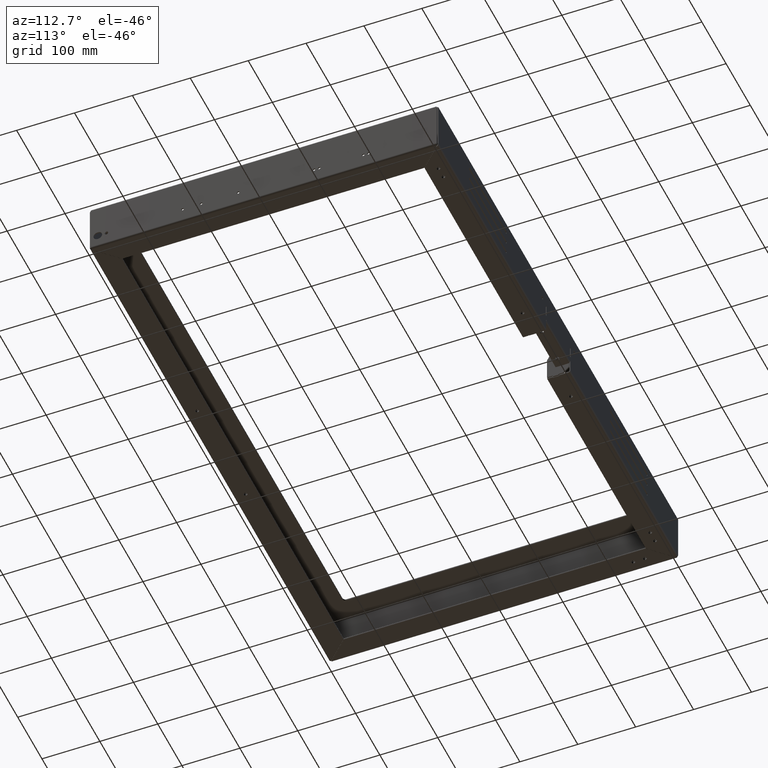
[diagram: clean part render]
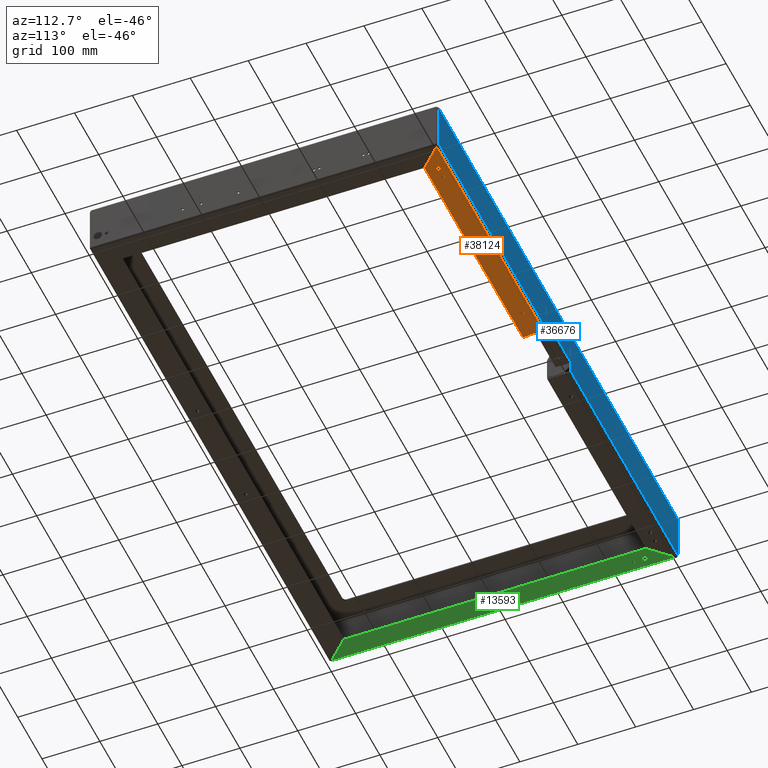
[diagram: same view with three faces highlighted in distinct colors, each labeled with its STEP entity id]
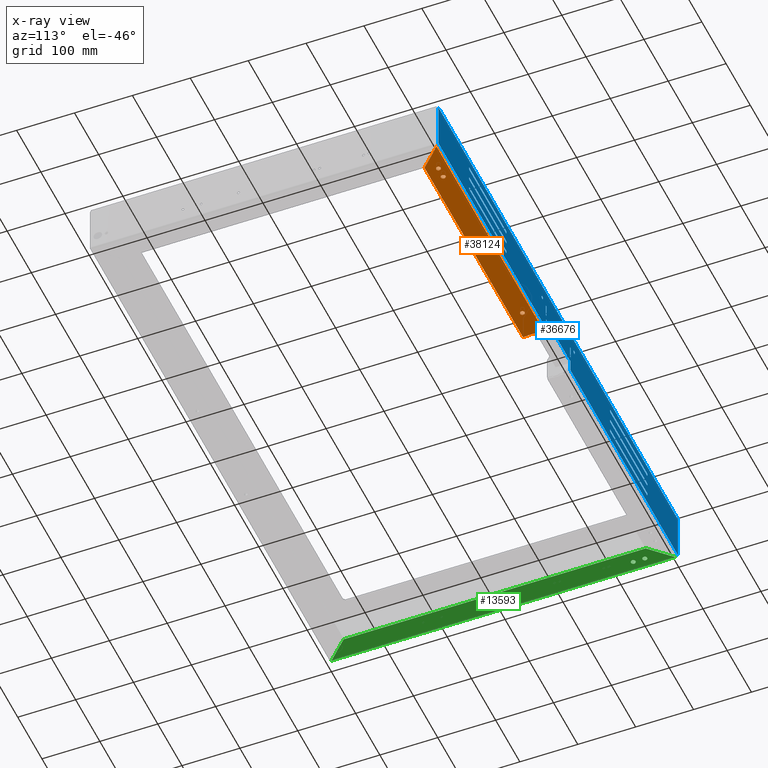
[diagram: x-ray of the same camera — body ghosted, the three highlighted faces saturated]
A machine part, auxiliary view with three faces highlighted in distinct colors.
The next image is the same camera in x-ray (body ghosted, the three faces saturated) — at least one of them is partly hidden behind the body in this view.
Their STEP definitions:

[orange] entity #38124 — the highlighted planar face has unit normal (0, -0, 1).
#48 = DIRECTION ( 'NONE',  ( 0.0000000000000000000, -1.000000000000000000, -7.304098846218139200E-015 ) ) ;
#461 = EDGE_LOOP ( 'NONE', ( #18545, #9162 ) ) ;
#619 = EDGE_CURVE ( 'NONE', #40884, #42184, #40321, .T. ) ;
#708 = VERTEX_POINT ( 'NONE', #22861 ) ;
#733 = DIRECTION ( 'NONE',  ( -0.0000000000000000000, 7.304098846218139200E-015, -1.000000000000000000 ) ) ;
#845 = ORIENTED_EDGE ( 'NONE', *, *, #24158, .F. ) ;
#1019 = AXIS2_PLACEMENT_3D ( 'NONE', #26883, #2458, #23357 ) ;
#1058 = VECTOR ( 'NONE', #24397, 1000.000000000000100 ) ;
#1075 = EDGE_CURVE ( 'NONE', #42184, #40884, #7466, .T. ) ;
#1082 = EDGE_CURVE ( 'NONE', #41067, #708, #18952, .T. ) ;
#1145 = ORIENTED_EDGE ( 'NONE', *, *, #44659, .T. ) ;
#2103 = VERTEX_POINT ( 'NONE', #31911 ) ;
#2458 = DIRECTION ( 'NONE',  ( -0.0000000000000000000, 7.304098846218139200E-015, -1.000000000000000000 ) ) ;
#2982 = AXIS2_PLACEMENT_3D ( 'NONE', #28549, #733, #21634 ) ;
#3958 = CARTESIAN_POINT ( 'NONE',  ( -494.9292893218816400, 261.0000000000003400, -90.00000000000028400 ) ) ;
#3966 = CARTESIAN_POINT ( 'NONE',  ( -494.9292893218816400, 297.0000000000003400, -90.00000000000002800 ) ) ;
#4014 = CARTESIAN_POINT ( 'NONE',  ( 99.99999999999994300, 281.0000000000003400, -90.00000000000289900 ) ) ;
#5387 = DIRECTION ( 'NONE',  ( -1.116924572057501200E-016, 1.000000000000000000, 3.784851220313033900E-015 ) ) ;
#5707 = CARTESIAN_POINT ( 'NONE',  ( 447.0000000000005700, 281.0000000000002800, -90.00000000000014200 ) ) ;
#6368 = EDGE_CURVE ( 'NONE', #25940, #27370, #20803, .T. ) ;
#7031 = ORIENTED_EDGE ( 'NONE', *, *, #6368, .F. ) ;
#7063 = ORIENTED_EDGE ( 'NONE', *, *, #8671, .F. ) ;
#7466 = CIRCLE ( 'NONE', #39530, 4.000000000000003600 ) ;
#7467 = DIRECTION ( 'NONE',  ( -0.0000000000000000000, 7.304098846218139200E-015, -1.000000000000000000 ) ) ;
#7552 = VERTEX_POINT ( 'NONE', #42943 ) ;
#8671 = EDGE_CURVE ( 'NONE', #7552, #2103, #31553, .T. ) ;
#8934 = CARTESIAN_POINT ( 'NONE',  ( 49.99999999999997200, 261.0000000000004000, -90.00000000000061100 ) ) ;
#9162 = ORIENTED_EDGE ( 'NONE', *, *, #619, .F. ) ;
#10075 = VECTOR ( 'NONE', #33703, 1000.000000000000000 ) ;
#10175 = AXIS2_PLACEMENT_3D ( 'NONE', #4014, #7467, #10994 ) ;
#10332 = LINE ( 'NONE', #13883, #1058 ) ;
#10601 = CARTESIAN_POINT ( 'NONE',  ( 427.0000000000005700, 285.0000000000002800, -90.00000000000011400 ) ) ;
#10884 = CARTESIAN_POINT ( 'NONE',  ( 447.0000000000005700, 281.0000000000002800, -90.00000000000014200 ) ) ;
#10994 = DIRECTION ( 'NONE',  ( 0.0000000000000000000, 1.000000000000000000, 6.938893903907222100E-015 ) ) ;
#13694 = DIRECTION ( 'NONE',  ( 6.308085367188384300E-016, 1.000000000000000000, 0.0000000000000000000 ) ) ;
#13883 = CARTESIAN_POINT ( 'NONE',  ( -204.6440534477185300, -400.5733427695943200, -90.00000000000513000 ) ) ;
#14694 = ORIENTED_EDGE ( 'NONE', *, *, #20828, .T. ) ;
#14935 = EDGE_CURVE ( 'NONE', #2103, #7552, #33798, .T. ) ;
#14944 = VERTEX_POINT ( 'NONE', #33767 ) ;
#15201 = CARTESIAN_POINT ( 'NONE',  ( 456.9292893218813600, 261.0000000000004500, -90.00000000000028400 ) ) ;
#15353 = CARTESIAN_POINT ( 'NONE',  ( 427.0000000000005700, 277.0000000000002800, -90.00000000000015600 ) ) ;
#15539 = VERTEX_POINT ( 'NONE', #33219 ) ;
#15560 = CARTESIAN_POINT ( 'NONE',  ( 492.9292893218816400, 297.0000000000005100, -90.00000000000002800 ) ) ;
#15667 = VECTOR ( 'NONE', #5387, 1000.000000000000000 ) ;
#16628 = EDGE_CURVE ( 'NONE', #31745, #708, #21678, .T. ) ;
#17140 = FACE_OUTER_BOUND ( 'NONE', #17780, .T. ) ;
#17622 = LINE ( 'NONE', #18057, #36211 ) ;
#17754 = DIRECTION ( 'NONE',  ( -1.000000000000000000, 1.116924572057501200E-016, 3.100088441669593800E-031 ) ) ;
#17755 = AXIS2_PLACEMENT_3D ( 'NONE', #20647, #20954, #48 ) ;
#17780 = EDGE_LOOP ( 'NONE', ( #30791, #1145, #18970, #41956, #30533, #41846, #20652, #14694 ) ) ;
#18005 = AXIS2_PLACEMENT_3D ( 'NONE', #5707, #26646, #23142 ) ;
#18047 = CARTESIAN_POINT ( 'NONE',  ( 447.0000000000005700, 285.0000000000002800, -90.00000000000011400 ) ) ;
#18057 = CARTESIAN_POINT ( 'NONE',  ( 51.00000000000003600, 281.5000000000004000, -90.00000000000019900 ) ) ;
#18545 = ORIENTED_EDGE ( 'NONE', *, *, #1075, .F. ) ;
#18848 = EDGE_CURVE ( 'NONE', #22390, #37421, #31366, .T. ) ;
#18952 = LINE ( 'NONE', #34953, #15667 ) ;
#18970 = ORIENTED_EDGE ( 'NONE', *, *, #19492, .T. ) ;
#19276 = DIRECTION ( 'NONE',  ( -0.0000000000000000000, 7.304098846218139200E-015, -1.000000000000000000 ) ) ;
#19346 = FACE_BOUND ( 'NONE', #461, .T. ) ;
#19492 = EDGE_CURVE ( 'NONE', #14944, #41067, #17622, .T. ) ;
#19691 = AXIS2_PLACEMENT_3D ( 'NONE', #10884, #31855, #28321 ) ;
#19780 = CARTESIAN_POINT ( 'NONE',  ( 51.00000000000002800, 270.5000000000004000, -90.00000000000019900 ) ) ;
#20647 = CARTESIAN_POINT ( 'NONE',  ( -7.451354628297620700E-029, 6.643518588373346800E-013, -90.00000000000218800 ) ) ;
#20652 = ORIENTED_EDGE ( 'NONE', *, *, #18848, .F. ) ;
#20803 = CIRCLE ( 'NONE', #18005, 4.000000000000003600 ) ;
#20828 = EDGE_CURVE ( 'NONE', #22390, #40538, #38118, .T. ) ;
#20954 = DIRECTION ( 'NONE',  ( 8.192259872435579800E-031, -7.304098846218139200E-015, 1.000000000000000000 ) ) ;
#21521 = CIRCLE ( 'NONE', #19691, 4.000000000000003600 ) ;
#21634 = DIRECTION ( 'NONE',  ( 0.0000000000000000000, 1.000000000000000000, 6.938893903907222100E-015 ) ) ;
#21678 = LINE ( 'NONE', #3966, #26593 ) ;
#22390 = VERTEX_POINT ( 'NONE', #8934 ) ;
#22440 = LINE ( 'NONE', #38116, #24622 ) ;
#22861 = CARTESIAN_POINT ( 'NONE',  ( 49.99999999999997200, 297.0000000000005100, -90.00000000000008500 ) ) ;
#23057 = CARTESIAN_POINT ( 'NONE',  ( 50.00000000000002800, 270.5000000000004000, -90.00000000000019900 ) ) ;
#23142 = DIRECTION ( 'NONE',  ( 0.0000000000000000000, 1.000000000000000000, 6.938893903907222100E-015 ) ) ;
#23357 = DIRECTION ( 'NONE',  ( 0.0000000000000000000, 1.000000000000000000, 6.938893903907222100E-015 ) ) ;
#23590 = CARTESIAN_POINT ( 'NONE',  ( 50.00000000000003600, 281.5000000000004000, -90.00000000000019900 ) ) ;
#23729 = EDGE_CURVE ( 'NONE', #15539, #40538, #44007, .T. ) ;
#24158 = EDGE_CURVE ( 'NONE', #27370, #25940, #21521, .T. ) ;
#24397 = DIRECTION ( 'NONE',  ( 0.7071067811865502400, 0.7071067811865449100, 5.176821466019573600E-015 ) ) ;
#24433 = VECTOR ( 'NONE', #34153, 1000.000000000000000 ) ;
#24622 = VECTOR ( 'NONE', #13694, 1000.000000000000000 ) ;
#25940 = VERTEX_POINT ( 'NONE', #18047 ) ;
#26450 = FACE_BOUND ( 'NONE', #34404, .T. ) ;
#26593 = VECTOR ( 'NONE', #31904, 1000.000000000000000 ) ;
#26646 = DIRECTION ( 'NONE',  ( -0.0000000000000000000, 7.304098846218139200E-015, -1.000000000000000000 ) ) ;
#26883 = CARTESIAN_POINT ( 'NONE',  ( 99.99999999999994300, 281.0000000000003400, -90.00000000000289900 ) ) ;
#27370 = VERTEX_POINT ( 'NONE', #40033 ) ;
#28321 = DIRECTION ( 'NONE',  ( 0.0000000000000000000, 1.000000000000000000, 6.938893903907222100E-015 ) ) ;
#28368 = DIRECTION ( 'NONE',  ( 1.000000000000000000, 1.121597618668223000E-016, -0.0000000000000000000 ) ) ;
#28549 = CARTESIAN_POINT ( 'NONE',  ( 427.0000000000005700, 281.0000000000002800, -90.00000000000014200 ) ) ;
#30533 = ORIENTED_EDGE ( 'NONE', *, *, #16628, .F. ) ;
#30662 = CARTESIAN_POINT ( 'NONE',  ( 49.99999999999997900, 159.0196097281446400, -90.00000000000061100 ) ) ;
#30791 = ORIENTED_EDGE ( 'NONE', *, *, #23729, .F. ) ;
#31366 = LINE ( 'NONE', #3958, #39521 ) ;
#31553 = CIRCLE ( 'NONE', #10175, 4.000000000000003600 ) ;
#31745 = VERTEX_POINT ( 'NONE', #15560 ) ;
#31855 = DIRECTION ( 'NONE',  ( -0.0000000000000000000, 7.304098846218139200E-015, -1.000000000000000000 ) ) ;
#31904 = DIRECTION ( 'NONE',  ( -1.000000000000000000, -1.682396428002334500E-016, -4.096129936217790800E-031 ) ) ;
#31911 = CARTESIAN_POINT ( 'NONE',  ( 99.99999999999994300, 285.0000000000003400, -90.00000000000287100 ) ) ;
#33219 = CARTESIAN_POINT ( 'NONE',  ( 51.00000000000002800, 270.5000000000004000, -90.00000000000019900 ) ) ;
#33703 = DIRECTION ( 'NONE',  ( -1.000000000000000000, 1.116924572057501200E-016, 3.100088441669593800E-031 ) ) ;
#33767 = CARTESIAN_POINT ( 'NONE',  ( 51.00000000000003600, 281.5000000000004000, -90.00000000000019900 ) ) ;
#33798 = CIRCLE ( 'NONE', #1019, 4.000000000000003600 ) ;
#34153 = DIRECTION ( 'NONE',  ( -1.116924572057501200E-016, 1.000000000000000000, 3.784851220313033900E-015 ) ) ;
#34404 = EDGE_LOOP ( 'NONE', ( #45237, #7063 ) ) ;
#34857 = PLANE ( 'NONE',  #17755 ) ;
#34953 = CARTESIAN_POINT ( 'NONE',  ( 49.99999999999997900, 159.0196097281446400, -90.00000000000061100 ) ) ;
#36211 = VECTOR ( 'NONE', #17754, 1000.000000000000000 ) ;
#36837 = FACE_BOUND ( 'NONE', #38559, .T. ) ;
#37421 = VERTEX_POINT ( 'NONE', #15201 ) ;
#38116 = CARTESIAN_POINT ( 'NONE',  ( 51.00000000000002800, 270.5000000000004000, -90.00000000000019900 ) ) ;
#38118 = LINE ( 'NONE', #30662, #24433 ) ;
#38124 = ADVANCED_FACE ( 'NONE', ( #19346, #36837, #26450, #17140 ), #34857, .F. ) ;
#38559 = EDGE_LOOP ( 'NONE', ( #7031, #845 ) ) ;
#39521 = VECTOR ( 'NONE', #28368, 1000.000000000000000 ) ;
#39530 = AXIS2_PLACEMENT_3D ( 'NONE', #43782, #19276, #40216 ) ;
#40033 = CARTESIAN_POINT ( 'NONE',  ( 447.0000000000005700, 277.0000000000002800, -90.00000000000015600 ) ) ;
#40216 = DIRECTION ( 'NONE',  ( 0.0000000000000000000, 1.000000000000000000, 6.938893903907222100E-015 ) ) ;
#40321 = CIRCLE ( 'NONE', #2982, 4.000000000000003600 ) ;
#40538 = VERTEX_POINT ( 'NONE', #23057 ) ;
#40884 = VERTEX_POINT ( 'NONE', #15353 ) ;
#41067 = VERTEX_POINT ( 'NONE', #23590 ) ;
#41651 = EDGE_CURVE ( 'NONE', #37421, #31745, #10332, .T. ) ;
#41846 = ORIENTED_EDGE ( 'NONE', *, *, #41651, .F. ) ;
#41956 = ORIENTED_EDGE ( 'NONE', *, *, #1082, .T. ) ;
#42184 = VERTEX_POINT ( 'NONE', #10601 ) ;
#42943 = CARTESIAN_POINT ( 'NONE',  ( 99.99999999999994300, 277.0000000000003400, -90.00000000000292700 ) ) ;
#43782 = CARTESIAN_POINT ( 'NONE',  ( 427.0000000000005700, 281.0000000000002800, -90.00000000000014200 ) ) ;
#44007 = LINE ( 'NONE', #19780, #10075 ) ;
#44659 = EDGE_CURVE ( 'NONE', #15539, #14944, #22440, .T. ) ;
#45237 = ORIENTED_EDGE ( 'NONE', *, *, #14935, .F. ) ;

[blue] entity #36676 — the highlighted planar face has unit normal (0, -1, -0).
#23 = EDGE_CURVE ( 'NONE', #8986, #38171, #41473, .T. ) ;
#83 = DIRECTION ( 'NONE',  ( 0.0000000000000000000, 0.0000000000000000000, -1.000000000000000000 ) ) ;
#149 = LINE ( 'NONE', #15986, #26916 ) ;
#526 = DIRECTION ( 'NONE',  ( -1.116924572057501200E-016, -1.000000000000000000, 3.784851220313033900E-015 ) ) ;
#877 = ORIENTED_EDGE ( 'NONE', *, *, #25080, .F. ) ;
#903 = FACE_BOUND ( 'NONE', #28738, .T. ) ;
#972 = DIRECTION ( 'NONE',  ( 0.0000000000000000000, 0.0000000000000000000, 1.000000000000000000 ) ) ;
#1083 = LINE ( 'NONE', #20419, #36053 ) ;
#1144 = VECTOR ( 'NONE', #20299, 1000.000000000000000 ) ;
#1267 = AXIS2_PLACEMENT_3D ( 'NONE', #13108, #37532, #16598 ) ;
#1333 = LINE ( 'NONE', #29087, #18788 ) ;
#1404 = DIRECTION ( 'NONE',  ( 0.0000000000000000000, 0.0000000000000000000, -1.000000000000000000 ) ) ;
#1472 = CARTESIAN_POINT ( 'NONE',  ( -50.00000000000003600, 301.0000000000003400, -70.00000000000004300 ) ) ;
#1779 = LINE ( 'NONE', #21516, #9933 ) ;
#1877 = VECTOR ( 'NONE', #41200, 1000.000000000000000 ) ;
#1879 = DIRECTION ( 'NONE',  ( 0.0000000000000000000, 0.0000000000000000000, -1.000000000000000000 ) ) ;
#1948 = AXIS2_PLACEMENT_3D ( 'NONE', #4743, #41567, #45106 ) ;
#1970 = ORIENTED_EDGE ( 'NONE', *, *, #17787, .F. ) ;
#2117 = VERTEX_POINT ( 'NONE', #30449 ) ;
#2174 = EDGE_LOOP ( 'NONE', ( #4948, #13505, #9654, #33256 ) ) ;
#2244 = CARTESIAN_POINT ( 'NONE',  ( -48.75000000000003600, 301.0000000000001700, -34.49999999999999300 ) ) ;
#2390 = CARTESIAN_POINT ( 'NONE',  ( 215.9133126665040300, 301.0000000000005100, -47.50000000000231600 ) ) ;
#2711 = ORIENTED_EDGE ( 'NONE', *, *, #38496, .F. ) ;
#2733 = VERTEX_POINT ( 'NONE', #37917 ) ;
#2769 = CARTESIAN_POINT ( 'NONE',  ( -497.0000000000002300, 301.0000000000000000, -3.999999999999995600 ) ) ;
#2856 = CARTESIAN_POINT ( 'NONE',  ( 49.99999999999997200, 301.0000000000003400, -70.00000000000005700 ) ) ;
#2862 = VERTEX_POINT ( 'NONE', #42235 ) ;
#2979 = EDGE_CURVE ( 'NONE', #6832, #39454, #1333, .T. ) ;
#3049 = DIRECTION ( 'NONE',  ( 4.227393329549447000E-031, -3.784851220313033900E-015, 1.000000000000000000 ) ) ;
#3237 = EDGE_CURVE ( 'NONE', #21117, #23412, #19308, .T. ) ;
#3279 = AXIS2_PLACEMENT_3D ( 'NONE', #22651, #22302, #1404 ) ;
#3303 = ORIENTED_EDGE ( 'NONE', *, *, #44551, .T. ) ;
#3640 = ORIENTED_EDGE ( 'NONE', *, *, #20587, .F. ) ;
#3748 = ORIENTED_EDGE ( 'NONE', *, *, #6403, .T. ) ;
#3860 = EDGE_CURVE ( 'NONE', #36659, #11584, #32413, .T. ) ;
#3996 = VERTEX_POINT ( 'NONE', #41259 ) ;
#4052 = LINE ( 'NONE', #33483, #13312 ) ;
#4053 = EDGE_CURVE ( 'NONE', #19134, #33717, #149, .T. ) ;
#4105 = DIRECTION ( 'NONE',  ( 4.227393329549447000E-031, -3.784851220313033900E-015, 1.000000000000000000 ) ) ;
#4162 = VERTEX_POINT ( 'NONE', #2390 ) ;
#4178 = ORIENTED_EDGE ( 'NONE', *, *, #11492, .F. ) ;
#4498 = CARTESIAN_POINT ( 'NONE',  ( 65.99999999999997200, 301.0000000000001700, -29.99999999999997900 ) ) ;
#4743 = CARTESIAN_POINT ( 'NONE',  ( -3.361942961893078900E-014, 301.0000000000000600, 1.146223179991909500E-012 ) ) ;
#4761 = VECTOR ( 'NONE', #21082, 1000.000000000000000 ) ;
#4808 = ORIENTED_EDGE ( 'NONE', *, *, #20053, .F. ) ;
#4914 = VECTOR ( 'NONE', #25156, 1000.000000000000000 ) ;
#4940 = DIRECTION ( 'NONE',  ( -1.000000000000000000, 0.0000000000000000000, 0.0000000000000000000 ) ) ;
#4948 = ORIENTED_EDGE ( 'NONE', *, *, #7304, .T. ) ;
#5266 = DIRECTION ( 'NONE',  ( -1.000000000000000000, 3.700743415417188600E-016, -1.387778780781445700E-016 ) ) ;
#5307 = CIRCLE ( 'NONE', #17264, 2.750000000000002700 ) ;
#5709 = VERTEX_POINT ( 'NONE', #7117 ) ;
#5712 = VECTOR ( 'NONE', #6468, 1000.000000000000000 ) ;
#6154 = CARTESIAN_POINT ( 'NONE',  ( -365.9133126665040000, 301.0000000000007400, -42.50000000000231600 ) ) ;
#6403 = EDGE_CURVE ( 'NONE', #14213, #23462, #27920, .T. ) ;
#6432 = EDGE_CURVE ( 'NONE', #6891, #21750, #43242, .T. ) ;
#6459 = VECTOR ( 'NONE', #44134, 1000.000000000000000 ) ;
#6468 = DIRECTION ( 'NONE',  ( -0.0000000000000000000, 2.775557561562891000E-015, -1.000000000000000000 ) ) ;
#6521 = ORIENTED_EDGE ( 'NONE', *, *, #23044, .T. ) ;
#6528 = CARTESIAN_POINT ( 'NONE',  ( 49.99999999999998600, 301.0000000000004000, -86.00000000000000000 ) ) ;
#6673 = ORIENTED_EDGE ( 'NONE', *, *, #9604, .T. ) ;
#6832 = VERTEX_POINT ( 'NONE', #40757 ) ;
#6891 = VERTEX_POINT ( 'NONE', #16890 ) ;
#6908 = EDGE_CURVE ( 'NONE', #27681, #5709, #1083, .T. ) ;
#6946 = ORIENTED_EDGE ( 'NONE', *, *, #30868, .F. ) ;
#6980 = VECTOR ( 'NONE', #37544, 1000.000000000000000 ) ;
#7117 = CARTESIAN_POINT ( 'NONE',  ( 365.9133126665040000, 301.0000000000006300, -25.00000000000233400 ) ) ;
#7126 = VECTOR ( 'NONE', #32150, 1000.000000000000000 ) ;
#7269 = VERTEX_POINT ( 'NONE', #2856 ) ;
#7277 = VERTEX_POINT ( 'NONE', #41163 ) ;
#7304 = EDGE_CURVE ( 'NONE', #4162, #9031, #32217, .T. ) ;
#7470 = CIRCLE ( 'NONE', #3279, 2.499999999999988500 ) ;
#7650 = VECTOR ( 'NONE', #44107, 1000.000000000000000 ) ;
#7685 = CARTESIAN_POINT ( 'NONE',  ( -51.25000000000003600, 301.0000000000002800, -55.50000000000000000 ) ) ;
#8207 = ORIENTED_EDGE ( 'NONE', *, *, #26958, .F. ) ;
#8222 = EDGE_CURVE ( 'NONE', #2117, #23736, #9690, .T. ) ;
#8242 = CARTESIAN_POINT ( 'NONE',  ( -365.9133126665039400, 301.0000000000006300, -70.00000000000233100 ) ) ;
#8272 = ORIENTED_EDGE ( 'NONE', *, *, #33354, .F. ) ;
#8379 = CARTESIAN_POINT ( 'NONE',  ( 215.9133126665039700, 301.0000000000002300, -42.50000000000233800 ) ) ;
#8467 = DIRECTION ( 'NONE',  ( -1.000000000000000000, 0.0000000000000000000, 0.0000000000000000000 ) ) ;
#8536 = LINE ( 'NONE', #42906, #15621 ) ;
#8611 = EDGE_CURVE ( 'NONE', #24814, #17340, #33748, .T. ) ;
#8641 = ORIENTED_EDGE ( 'NONE', *, *, #33453, .F. ) ;
#8665 = LINE ( 'NONE', #45372, #34377 ) ;
#8870 = CARTESIAN_POINT ( 'NONE',  ( -365.9133126665039400, 301.0000000000008000, -22.50000000000233800 ) ) ;
#8896 = LINE ( 'NONE', #25368, #35694 ) ;
#8986 = VERTEX_POINT ( 'NONE', #45097 ) ;
#9031 = VERTEX_POINT ( 'NONE', #28692 ) ;
#9063 = DIRECTION ( 'NONE',  ( 0.0000000000000000000, -5.286776307738839200E-015, 1.000000000000000000 ) ) ;
#9082 = FACE_BOUND ( 'NONE', #2174, .T. ) ;
#9435 = ORIENTED_EDGE ( 'NONE', *, *, #26564, .F. ) ;
#9480 = EDGE_CURVE ( 'NONE', #3996, #8986, #41326, .T. ) ;
#9604 = EDGE_CURVE ( 'NONE', #12220, #27681, #15026, .T. ) ;
#9654 = ORIENTED_EDGE ( 'NONE', *, *, #6432, .T. ) ;
#9690 = CIRCLE ( 'NONE', #11919, 2.750000000000002700 ) ;
#9714 = CARTESIAN_POINT ( 'NONE',  ( 215.9133126665039700, 301.0000000000001100, -20.00000000000234500 ) ) ;
#9933 = VECTOR ( 'NONE', #32076, 1000.000000000000000 ) ;
#10190 = FACE_BOUND ( 'NONE', #29415, .T. ) ;
#10455 = EDGE_CURVE ( 'NONE', #44297, #34443, #43463, .T. ) ;
#10466 = CARTESIAN_POINT ( 'NONE',  ( -66.00000000000002800, 301.0000000000001700, -32.75000000000000000 ) ) ;
#10715 = CARTESIAN_POINT ( 'NONE',  ( 365.9133126665039400, 301.0000000000004500, -65.00000000000230200 ) ) ;
#10846 = ORIENTED_EDGE ( 'NONE', *, *, #33879, .F. ) ;
#10956 = DIRECTION ( 'NONE',  ( 1.000000000000000000, 1.116924572057501200E-016, 4.284512185773610000E-031 ) ) ;
#11072 = CARTESIAN_POINT ( 'NONE',  ( -49.99000000000004500, 301.0000000000002800, -70.00000000000004300 ) ) ;
#11172 = EDGE_CURVE ( 'NONE', #27019, #26790, #36795, .T. ) ;
#11176 = ORIENTED_EDGE ( 'NONE', *, *, #21219, .F. ) ;
#11220 = ORIENTED_EDGE ( 'NONE', *, *, #25627, .F. ) ;
#11364 = CARTESIAN_POINT ( 'NONE',  ( -215.9133126665040300, 301.0000000000008000, -22.50000000000233800 ) ) ;
#11462 = DIRECTION ( 'NONE',  ( -1.116924572057501200E-016, -1.000000000000000000, 3.784851220313033900E-015 ) ) ;
#11492 = EDGE_CURVE ( 'NONE', #39454, #25066, #28053, .T. ) ;
#11502 = LINE ( 'NONE', #23966, #1144 ) ;
#11584 = VERTEX_POINT ( 'NONE', #21607 ) ;
#11670 = CARTESIAN_POINT ( 'NONE',  ( -50.00000000000003600, 301.0000000000003400, -70.00000000000004300 ) ) ;
#11743 = PLANE ( 'NONE',  #1948 ) ;
#11919 = AXIS2_PLACEMENT_3D ( 'NONE', #4498, #25391, #972 ) ;
#12126 = DIRECTION ( 'NONE',  ( -0.0000000000000000000, 1.000000000000000000, 3.784851220313033900E-015 ) ) ;
#12133 = CARTESIAN_POINT ( 'NONE',  ( -365.9133126665040000, 301.0000000000007400, -47.50000000000230200 ) ) ;
#12220 = VERTEX_POINT ( 'NONE', #9714 ) ;
#12364 = EDGE_CURVE ( 'NONE', #21890, #36659, #1779, .T. ) ;
#12628 = ORIENTED_EDGE ( 'NONE', *, *, #9480, .F. ) ;
#12695 = VERTEX_POINT ( 'NONE', #25786 ) ;
#13088 = VERTEX_POINT ( 'NONE', #16756 ) ;
#13099 = EDGE_CURVE ( 'NONE', #21565, #38001, #11502, .T. ) ;
#13108 = CARTESIAN_POINT ( 'NONE',  ( 215.9133126665040800, 301.0000000000004500, -67.50000000000230200 ) ) ;
#13109 = DIRECTION ( 'NONE',  ( -1.000000000000000000, -1.116924572057497000E-016, -1.116924572057501000E-016 ) ) ;
#13120 = CARTESIAN_POINT ( 'NONE',  ( -48.75000000000003600, 301.0000000000002800, -55.50000000000000000 ) ) ;
#13312 = VECTOR ( 'NONE', #16017, 1000.000000000000000 ) ;
#13330 = DIRECTION ( 'NONE',  ( 0.0000000000000000000, 0.0000000000000000000, -1.000000000000000000 ) ) ;
#13338 = CARTESIAN_POINT ( 'NONE',  ( -50.00000000000003600, 301.0000000000003400, -70.00000000000004300 ) ) ;
#13434 = CIRCLE ( 'NONE', #29178, 2.499999999999995100 ) ;
#13505 = ORIENTED_EDGE ( 'NONE', *, *, #37035, .T. ) ;
#13551 = ORIENTED_EDGE ( 'NONE', *, *, #8611, .F. ) ;
#13640 = CARTESIAN_POINT ( 'NONE',  ( -215.9133126665040300, 301.0000000000007400, -42.50000000000234500 ) ) ;
#14107 = VECTOR ( 'NONE', #13109, 1000.000000000000000 ) ;
#14190 = EDGE_LOOP ( 'NONE', ( #22024, #35450, #14946, #11220 ) ) ;
#14202 = LINE ( 'NONE', #30940, #4914 ) ;
#14213 = VERTEX_POINT ( 'NONE', #21113 ) ;
#14271 = EDGE_LOOP ( 'NONE', ( #23520, #29732 ) ) ;
#14469 = CARTESIAN_POINT ( 'NONE',  ( 48.98999999999997400, 301.0000000000000600, 1.146223179991909500E-012 ) ) ;
#14649 = VERTEX_POINT ( 'NONE', #36747 ) ;
#14886 = DIRECTION ( 'NONE',  ( 0.0000000000000000000, 0.0000000000000000000, -1.000000000000000000 ) ) ;
#14913 = EDGE_CURVE ( 'NONE', #37656, #19134, #31616, .T. ) ;
#14946 = ORIENTED_EDGE ( 'NONE', *, *, #20940, .F. ) ;
#15026 = CIRCLE ( 'NONE', #40362, 2.499999999999995100 ) ;
#15275 = DIRECTION ( 'NONE',  ( -0.0000000000000000000, 1.000000000000000000, 3.784851220313033900E-015 ) ) ;
#15414 = DIRECTION ( 'NONE',  ( 0.0000000000000000000, 3.784851220313033900E-015, -1.000000000000000000 ) ) ;
#15566 = LINE ( 'NONE', #38491, #24864 ) ;
#15621 = VECTOR ( 'NONE', #39345, 1000.000000000000000 ) ;
#15705 = DIRECTION ( 'NONE',  ( -0.0000000000000000000, 1.000000000000000000, 3.784851220313033900E-015 ) ) ;
#15708 = LINE ( 'NONE', #14469, #23922 ) ;
#15751 = VECTOR ( 'NONE', #31435, 1000.000000000000000 ) ;
#15986 = CARTESIAN_POINT ( 'NONE',  ( -48.75000000000003600, 301.0000000000001700, -34.49999999999999300 ) ) ;
#16017 = DIRECTION ( 'NONE',  ( 1.000000000000000000, 1.116924572057501200E-016, 4.284512185773610000E-031 ) ) ;
#16293 = CARTESIAN_POINT ( 'NONE',  ( 365.9133126665040000, 301.0000000000005100, -45.00000000000230900 ) ) ;
#16384 = CARTESIAN_POINT ( 'NONE',  ( 48.75000000000003600, 301.0000000000001700, -34.49999999999999300 ) ) ;
#16414 = VECTOR ( 'NONE', #37363, 1000.000000000000000 ) ;
#16573 = VECTOR ( 'NONE', #15414, 1000.000000000000000 ) ;
#16588 = CARTESIAN_POINT ( 'NONE',  ( 49.98999999999997400, 301.0000000000000600, 1.146223179991909500E-012 ) ) ;
#16598 = DIRECTION ( 'NONE',  ( 0.0000000000000000000, 0.0000000000000000000, -1.000000000000000000 ) ) ;
#16756 = CARTESIAN_POINT ( 'NONE',  ( 48.98999999999997400, 301.0000000000002800, -65.00000000000007100 ) ) ;
#16779 = VERTEX_POINT ( 'NONE', #22936 ) ;
#16812 = CARTESIAN_POINT ( 'NONE',  ( 365.9133126665039400, 301.0000000000006300, -22.50000000000233800 ) ) ;
#16890 = CARTESIAN_POINT ( 'NONE',  ( 365.9133126665040000, 301.0000000000005100, -42.50000000000231600 ) ) ;
#17264 = AXIS2_PLACEMENT_3D ( 'NONE', #40173, #15705, #36658 ) ;
#17340 = VERTEX_POINT ( 'NONE', #16384 ) ;
#17444 = DIRECTION ( 'NONE',  ( -1.116924572057501200E-016, 1.000000000000000000, -3.784851220313033900E-015 ) ) ;
#17512 = VECTOR ( 'NONE', #9063, 1000.000000000000000 ) ;
#17742 = VECTOR ( 'NONE', #44856, 1000.000000000000000 ) ;
#17747 = ORIENTED_EDGE ( 'NONE', *, *, #13099, .T. ) ;
#17787 = EDGE_CURVE ( 'NONE', #19259, #7269, #27044, .T. ) ;
#17832 = EDGE_LOOP ( 'NONE', ( #12628, #11176, #877, #25617 ) ) ;
#17903 = EDGE_CURVE ( 'NONE', #28837, #14649, #43486, .T. ) ;
#17908 = LINE ( 'NONE', #29388, #26123 ) ;
#17969 = VERTEX_POINT ( 'NONE', #41914 ) ;
#18372 = FACE_BOUND ( 'NONE', #33315, .T. ) ;
#18498 = ORIENTED_EDGE ( 'NONE', *, *, #17903, .T. ) ;
#18501 = DIRECTION ( 'NONE',  ( 0.0000000000000000000, -2.775557561562891000E-015, 1.000000000000000000 ) ) ;
#18713 = CARTESIAN_POINT ( 'NONE',  ( -66.00000000000002800, 301.0000000000001700, -27.24999999999999300 ) ) ;
#18734 = VECTOR ( 'NONE', #32748, 1000.000000000000000 ) ;
#18788 = VECTOR ( 'NONE', #18501, 1000.000000000000000 ) ;
#19078 = ORIENTED_EDGE ( 'NONE', *, *, #24718, .T. ) ;
#19134 = VERTEX_POINT ( 'NONE', #2244 ) ;
#19198 = DIRECTION ( 'NONE',  ( -1.116924572057501200E-016, 1.000000000000000000, -3.784851220313033900E-015 ) ) ;
#19259 = VERTEX_POINT ( 'NONE', #26640 ) ;
#19291 = CARTESIAN_POINT ( 'NONE',  ( -215.9133126665040300, 301.0000000000007400, -45.00000000000233100 ) ) ;
#19308 = LINE ( 'NONE', #23474, #1877 ) ;
#19442 = CARTESIAN_POINT ( 'NONE',  ( 365.9133126665040000, 301.0000000000005100, -42.50000000000231600 ) ) ;
#19640 = CARTESIAN_POINT ( 'NONE',  ( -365.9133126665040000, 301.0000000000008000, -20.00000000000234500 ) ) ;
#19807 = VECTOR ( 'NONE', #8467, 1000.000000000000000 ) ;
#19833 = DIRECTION ( 'NONE',  ( 0.0000000000000000000, 0.0000000000000000000, -1.000000000000000000 ) ) ;
#19954 = CARTESIAN_POINT ( 'NONE',  ( 48.75000000000003600, 301.0000000000002800, -55.50000000000000000 ) ) ;
#19985 = DIRECTION ( 'NONE',  ( 1.000000000000000000, 0.0000000000000000000, 0.0000000000000000000 ) ) ;
#20010 = VERTEX_POINT ( 'NONE', #38292 ) ;
#20044 = EDGE_CURVE ( 'NONE', #25066, #38890, #8665, .T. ) ;
#20053 = EDGE_CURVE ( 'NONE', #20010, #19259, #44788, .T. ) ;
#20299 = DIRECTION ( 'NONE',  ( 1.000000000000000000, -3.700743415417191600E-016, -0.0000000000000000000 ) ) ;
#20344 = EDGE_CURVE ( 'NONE', #2733, #16779, #34897, .T. ) ;
#20419 = CARTESIAN_POINT ( 'NONE',  ( 365.9133126665040000, 301.0000000000006300, -25.00000000000233400 ) ) ;
#20577 = FACE_BOUND ( 'NONE', #14271, .T. ) ;
#20587 = EDGE_CURVE ( 'NONE', #27019, #13088, #15708, .T. ) ;
#20746 = CARTESIAN_POINT ( 'NONE',  ( -51.25000000000003600, 301.0000000000001700, -34.49999999999999300 ) ) ;
#20842 = CIRCLE ( 'NONE', #32368, 2.499999999999995100 ) ;
#20940 = EDGE_CURVE ( 'NONE', #17969, #21890, #30477, .T. ) ;
#20987 = DIRECTION ( 'NONE',  ( -1.116924572057501200E-016, 1.000000000000000000, -3.784851220313033900E-015 ) ) ;
#21082 = DIRECTION ( 'NONE',  ( 0.0000000000000000000, -5.286776307738839200E-015, 1.000000000000000000 ) ) ;
#21113 = CARTESIAN_POINT ( 'NONE',  ( 51.25000000000003600, 301.0000000000002800, -55.50000000000000000 ) ) ;
#21117 = VERTEX_POINT ( 'NONE', #39279 ) ;
#21219 = EDGE_CURVE ( 'NONE', #2862, #3996, #17908, .T. ) ;
#21270 = ORIENTED_EDGE ( 'NONE', *, *, #31398, .T. ) ;
#21441 = DIRECTION ( 'NONE',  ( 0.0000000000000000000, 0.0000000000000000000, -1.000000000000000000 ) ) ;
#21516 = CARTESIAN_POINT ( 'NONE',  ( -365.9133126665039400, 301.0000000000006300, -70.00000000000233100 ) ) ;
#21565 = VERTEX_POINT ( 'NONE', #28273 ) ;
#21607 = CARTESIAN_POINT ( 'NONE',  ( -365.9133126665039400, 301.0000000000006800, -65.00000000000230200 ) ) ;
#21750 = VERTEX_POINT ( 'NONE', #8379 ) ;
#21830 = VECTOR ( 'NONE', #30630, 1000.000000000000000 ) ;
#21890 = VERTEX_POINT ( 'NONE', #44725 ) ;
#22019 = VERTEX_POINT ( 'NONE', #10466 ) ;
#22024 = ORIENTED_EDGE ( 'NONE', *, *, #3860, .F. ) ;
#22302 = DIRECTION ( 'NONE',  ( -1.116924572057501200E-016, -1.000000000000000000, 3.784851220313033900E-015 ) ) ;
#22651 = CARTESIAN_POINT ( 'NONE',  ( 215.9133126665040300, 301.0000000000005100, -45.00000000000233100 ) ) ;
#22660 = DIRECTION ( 'NONE',  ( -1.000000000000000000, 0.0000000000000000000, 9.251858538542971600E-017 ) ) ;
#22814 = DIRECTION ( 'NONE',  ( 0.0000000000000000000, 0.0000000000000000000, -1.000000000000000000 ) ) ;
#22936 = CARTESIAN_POINT ( 'NONE',  ( -494.9292893218816400, 301.0000000000000000, -3.999999999999940000 ) ) ;
#22941 = LINE ( 'NONE', #6154, #21830 ) ;
#23044 = EDGE_CURVE ( 'NONE', #38001, #28837, #23803, .T. ) ;
#23181 = AXIS2_PLACEMENT_3D ( 'NONE', #24923, #526, #21441 ) ;
#23244 = ORIENTED_EDGE ( 'NONE', *, *, #6908, .T. ) ;
#23412 = VERTEX_POINT ( 'NONE', #6528 ) ;
#23462 = VERTEX_POINT ( 'NONE', #37343 ) ;
#23474 = CARTESIAN_POINT ( 'NONE',  ( 494.9292893218815800, 301.0000000000004500, -86.00000000000001400 ) ) ;
#23520 = ORIENTED_EDGE ( 'NONE', *, *, #8222, .F. ) ;
#23638 = CIRCLE ( 'NONE', #42881, 2.499999999999995100 ) ;
#23736 = VERTEX_POINT ( 'NONE', #30204 ) ;
#23761 = AXIS2_PLACEMENT_3D ( 'NONE', #38373, #17444, #41915 ) ;
#23767 = VECTOR ( 'NONE', #31685, 1000.000000000000000 ) ;
#23803 = CIRCLE ( 'NONE', #23181, 2.500000000000002200 ) ;
#23859 = CARTESIAN_POINT ( 'NONE',  ( 48.98999999999997400, 301.0000000000004000, -66.00000000000007100 ) ) ;
#23913 = CARTESIAN_POINT ( 'NONE',  ( -365.9133126665040000, 301.0000000000007400, -47.50000000000230200 ) ) ;
#23922 = VECTOR ( 'NONE', #4105, 1000.000000000000000 ) ;
#23966 = CARTESIAN_POINT ( 'NONE',  ( 365.9133126665039400, 301.0000000000004000, -70.00000000000233100 ) ) ;
#23980 = AXIS2_PLACEMENT_3D ( 'NONE', #16812, #37766, #13330 ) ;
#24190 = CARTESIAN_POINT ( 'NONE',  ( -51.25000000000003600, 301.0000000000002800, -55.50000000000000000 ) ) ;
#24295 = LINE ( 'NONE', #27411, #5712 ) ;
#24385 = ORIENTED_EDGE ( 'NONE', *, *, #4053, .T. ) ;
#24454 = ORIENTED_EDGE ( 'NONE', *, *, #38382, .T. ) ;
#24567 = ORIENTED_EDGE ( 'NONE', *, *, #14913, .T. ) ;
#24595 = VECTOR ( 'NONE', #5266, 1000.000000000000000 ) ;
#24621 = LINE ( 'NONE', #7685, #7126 ) ;
#24718 = EDGE_CURVE ( 'NONE', #30035, #12220, #8896, .T. ) ;
#24814 = VERTEX_POINT ( 'NONE', #19954 ) ;
#24864 = VECTOR ( 'NONE', #10956, 1000.000000000000000 ) ;
#24923 = CARTESIAN_POINT ( 'NONE',  ( 365.9133126665039400, 301.0000000000004500, -67.50000000000230200 ) ) ;
#25066 = VERTEX_POINT ( 'NONE', #11072 ) ;
#25080 = EDGE_CURVE ( 'NONE', #38171, #2862, #23638, .T. ) ;
#25156 = DIRECTION ( 'NONE',  ( 1.000000000000000000, 0.0000000000000000000, 0.0000000000000000000 ) ) ;
#25368 = CARTESIAN_POINT ( 'NONE',  ( 365.9133126665040000, 301.0000000000006300, -20.00000000000234500 ) ) ;
#25391 = DIRECTION ( 'NONE',  ( -0.0000000000000000000, 1.000000000000000000, 3.784851220313033900E-015 ) ) ;
#25431 = VERTEX_POINT ( 'NONE', #13640 ) ;
#25616 = ORIENTED_EDGE ( 'NONE', *, *, #39452, .F. ) ;
#25617 = ORIENTED_EDGE ( 'NONE', *, *, #23, .F. ) ;
#25627 = EDGE_CURVE ( 'NONE', #11584, #17969, #27995, .T. ) ;
#25786 = CARTESIAN_POINT ( 'NONE',  ( -48.99000000000003800, 301.0000000000002800, -65.00000000000007100 ) ) ;
#25886 = LINE ( 'NONE', #36353, #16573 ) ;
#26028 = EDGE_CURVE ( 'NONE', #34443, #7277, #20842, .T. ) ;
#26055 = EDGE_LOOP ( 'NONE', ( #4808, #2711, #3640, #33309, #41555, #33283, #40410, #4178, #41392, #3303, #9435, #34506, #24454, #39184, #26697, #1970 ) ) ;
#26123 = VECTOR ( 'NONE', #4940, 1000.000000000000000 ) ;
#26190 = AXIS2_PLACEMENT_3D ( 'NONE', #19291, #43805, #22814 ) ;
#26284 = DIRECTION ( 'NONE',  ( -1.116924572057501200E-016, 1.000000000000000000, -3.784851220313033900E-015 ) ) ;
#26564 = EDGE_CURVE ( 'NONE', #16779, #32860, #36090, .T. ) ;
#26582 = FACE_BOUND ( 'NONE', #14190, .T. ) ;
#26610 = CARTESIAN_POINT ( 'NONE',  ( -494.9292893218815800, 301.0000000000003400, -86.00000000000000000 ) ) ;
#26640 = CARTESIAN_POINT ( 'NONE',  ( 49.98999999999997400, 301.0000000000003400, -70.00000000000005700 ) ) ;
#26697 = ORIENTED_EDGE ( 'NONE', *, *, #37650, .F. ) ;
#26745 = DIRECTION ( 'NONE',  ( -1.000000000000000000, 0.0000000000000000000, 0.0000000000000000000 ) ) ;
#26790 = VERTEX_POINT ( 'NONE', #41349 ) ;
#26801 = VECTOR ( 'NONE', #31332, 1000.000000000000000 ) ;
#26834 = LINE ( 'NONE', #44464, #16414 ) ;
#26916 = VECTOR ( 'NONE', #26745, 1000.000000000000000 ) ;
#26958 = EDGE_CURVE ( 'NONE', #7277, #25431, #22941, .T. ) ;
#27019 = VERTEX_POINT ( 'NONE', #43646 ) ;
#27044 = LINE ( 'NONE', #13338, #17742 ) ;
#27075 = DIRECTION ( 'NONE',  ( -1.000000000000000000, 0.0000000000000000000, 0.0000000000000000000 ) ) ;
#27411 = CARTESIAN_POINT ( 'NONE',  ( 49.99999999999997200, 301.0000000000004000, -90.00000000000007100 ) ) ;
#27501 = VECTOR ( 'NONE', #27075, 1000.000000000000000 ) ;
#27681 = VERTEX_POINT ( 'NONE', #27786 ) ;
#27682 = FACE_BOUND ( 'NONE', #30545, .T. ) ;
#27724 = EDGE_CURVE ( 'NONE', #38890, #12695, #15566, .T. ) ;
#27786 = CARTESIAN_POINT ( 'NONE',  ( 215.9133126665040300, 301.0000000000006300, -25.00000000000233400 ) ) ;
#27920 = LINE ( 'NONE', #37022, #17512 ) ;
#27995 = LINE ( 'NONE', #41102, #44428 ) ;
#28053 = LINE ( 'NONE', #11670, #18734 ) ;
#28175 = EDGE_LOOP ( 'NONE', ( #40422, #41839, #41358, #8207 ) ) ;
#28273 = CARTESIAN_POINT ( 'NONE',  ( 215.9133126665040800, 301.0000000000004500, -70.00000000000233100 ) ) ;
#28692 = CARTESIAN_POINT ( 'NONE',  ( 365.9133126665040000, 301.0000000000005100, -47.50000000000230200 ) ) ;
#28738 = EDGE_LOOP ( 'NONE', ( #25616, #24567, #24385, #6946 ) ) ;
#28837 = VERTEX_POINT ( 'NONE', #45004 ) ;
#28907 = DIRECTION ( 'NONE',  ( -1.000000000000000000, 0.0000000000000000000, 0.0000000000000000000 ) ) ;
#29087 = CARTESIAN_POINT ( 'NONE',  ( -50.00000000000003600, 301.0000000000004000, -90.00000000000005700 ) ) ;
#29178 = AXIS2_PLACEMENT_3D ( 'NONE', #16293, #40771, #19833 ) ;
#29388 = CARTESIAN_POINT ( 'NONE',  ( -365.9133126665040000, 301.0000000000008000, -25.00000000000233400 ) ) ;
#29415 = EDGE_LOOP ( 'NONE', ( #8272, #8641 ) ) ;
#29432 = CARTESIAN_POINT ( 'NONE',  ( -48.75000000000003600, 301.0000000000002800, -55.50000000000000000 ) ) ;
#29451 = VERTEX_POINT ( 'NONE', #18713 ) ;
#29704 = CIRCLE ( 'NONE', #1267, 2.500000000000002200 ) ;
#29732 = ORIENTED_EDGE ( 'NONE', *, *, #36074, .F. ) ;
#29947 = CIRCLE ( 'NONE', #42028, 2.750000000000002700 ) ;
#30035 = VERTEX_POINT ( 'NONE', #32259 ) ;
#30204 = CARTESIAN_POINT ( 'NONE',  ( 65.99999999999997200, 301.0000000000001700, -32.74999999999997900 ) ) ;
#30449 = CARTESIAN_POINT ( 'NONE',  ( 65.99999999999997200, 301.0000000000001700, -27.24999999999997500 ) ) ;
#30455 = CARTESIAN_POINT ( 'NONE',  ( 365.9133126665039400, 301.0000000000004000, -70.00000000000233100 ) ) ;
#30477 = CIRCLE ( 'NONE', #45096, 2.500000000000002200 ) ;
#30545 = EDGE_LOOP ( 'NONE', ( #13551, #21270, #3748, #10846 ) ) ;
#30630 = DIRECTION ( 'NONE',  ( 1.000000000000000000, 3.700743415417188600E-016, -1.387778780781445700E-016 ) ) ;
#30868 = EDGE_CURVE ( 'NONE', #41140, #33717, #24621, .T. ) ;
#30940 = CARTESIAN_POINT ( 'NONE',  ( 48.75000000000003600, 301.0000000000002800, -55.50000000000000000 ) ) ;
#30945 = CARTESIAN_POINT ( 'NONE',  ( -48.75000000000003600, 301.0000000000002800, -55.50000000000000000 ) ) ;
#31189 = CIRCLE ( 'NONE', #26190, 2.499999999999988500 ) ;
#31332 = DIRECTION ( 'NONE',  ( -0.0000000000000000000, 3.784851220313033900E-015, -1.000000000000000000 ) ) ;
#31398 = EDGE_CURVE ( 'NONE', #24814, #14213, #14202, .T. ) ;
#31435 = DIRECTION ( 'NONE',  ( -4.227393329549447000E-031, 3.784851220313033900E-015, -1.000000000000000000 ) ) ;
#31616 = LINE ( 'NONE', #13120, #6980 ) ;
#31665 = CIRCLE ( 'NONE', #23980, 2.499999999999995100 ) ;
#31685 = DIRECTION ( 'NONE',  ( -1.000000000000000000, 0.0000000000000000000, 0.0000000000000000000 ) ) ;
#32051 = EDGE_CURVE ( 'NONE', #5709, #30035, #31665, .T. ) ;
#32076 = DIRECTION ( 'NONE',  ( -1.000000000000000000, -3.700743415417191600E-016, 0.0000000000000000000 ) ) ;
#32150 = DIRECTION ( 'NONE',  ( 0.0000000000000000000, -5.286776307738839200E-015, 1.000000000000000000 ) ) ;
#32217 = LINE ( 'NONE', #37471, #40399 ) ;
#32259 = CARTESIAN_POINT ( 'NONE',  ( 365.9133126665040000, 301.0000000000006300, -20.00000000000234500 ) ) ;
#32368 = AXIS2_PLACEMENT_3D ( 'NONE', #43698, #19198, #40138 ) ;
#32413 = CIRCLE ( 'NONE', #23761, 2.500000000000002200 ) ;
#32429 = DIRECTION ( 'NONE',  ( 0.0000000000000000000, 0.0000000000000000000, -1.000000000000000000 ) ) ;
#32663 = CARTESIAN_POINT ( 'NONE',  ( -49.99000000000004500, 301.0000000000002800, -65.00000000000007100 ) ) ;
#32730 = CARTESIAN_POINT ( 'NONE',  ( -66.00000000000002800, 301.0000000000001700, -29.99999999999999600 ) ) ;
#32748 = DIRECTION ( 'NONE',  ( 1.000000000000000000, 0.0000000000000000000, -1.387778780781445700E-016 ) ) ;
#32860 = VERTEX_POINT ( 'NONE', #26610 ) ;
#33060 = VECTOR ( 'NONE', #22660, 1000.000000000000000 ) ;
#33077 = DIRECTION ( 'NONE',  ( 0.0000000000000000000, 0.0000000000000000000, 1.000000000000000000 ) ) ;
#33256 = ORIENTED_EDGE ( 'NONE', *, *, #33362, .T. ) ;
#33283 = ORIENTED_EDGE ( 'NONE', *, *, #27724, .F. ) ;
#33309 = ORIENTED_EDGE ( 'NONE', *, *, #11172, .T. ) ;
#33315 = EDGE_LOOP ( 'NONE', ( #23244, #39701, #19078, #6673 ) ) ;
#33354 = EDGE_CURVE ( 'NONE', #29451, #22019, #44704, .T. ) ;
#33362 = EDGE_CURVE ( 'NONE', #21750, #4162, #7470, .T. ) ;
#33453 = EDGE_CURVE ( 'NONE', #22019, #29451, #5307, .T. ) ;
#33483 = CARTESIAN_POINT ( 'NONE',  ( -3.361942961893078900E-014, 301.0000000000002800, -65.00000000000007100 ) ) ;
#33717 = VERTEX_POINT ( 'NONE', #20746 ) ;
#33748 = LINE ( 'NONE', #42041, #4761 ) ;
#33879 = EDGE_CURVE ( 'NONE', #17340, #23462, #8536, .T. ) ;
#34377 = VECTOR ( 'NONE', #3049, 1000.000000000000000 ) ;
#34443 = VERTEX_POINT ( 'NONE', #23913 ) ;
#34506 = ORIENTED_EDGE ( 'NONE', *, *, #20344, .F. ) ;
#34817 = CARTESIAN_POINT ( 'NONE',  ( -494.9292893218815800, 301.0000000000000000, -1.999999999999992700 ) ) ;
#34897 = LINE ( 'NONE', #2769, #14107 ) ;
#35020 = CARTESIAN_POINT ( 'NONE',  ( -215.9133126665040300, 301.0000000000008000, -20.00000000000234500 ) ) ;
#35450 = ORIENTED_EDGE ( 'NONE', *, *, #12364, .F. ) ;
#35694 = VECTOR ( 'NONE', #28907, 1000.000000000000000 ) ;
#35816 = DIRECTION ( 'NONE',  ( -1.116924572057501200E-016, 1.000000000000000000, -3.784851220313033900E-015 ) ) ;
#35881 = FACE_BOUND ( 'NONE', #17832, .T. ) ;
#35914 = CARTESIAN_POINT ( 'NONE',  ( 215.9133126665040300, 301.0000000000006300, -22.50000000000233800 ) ) ;
#36053 = VECTOR ( 'NONE', #41364, 1000.000000000000000 ) ;
#36074 = EDGE_CURVE ( 'NONE', #23736, #2117, #29947, .T. ) ;
#36090 = LINE ( 'NONE', #34817, #26801 ) ;
#36196 = LINE ( 'NONE', #29432, #19807 ) ;
#36216 = DIRECTION ( 'NONE',  ( 0.0000000000000000000, 0.0000000000000000000, 1.000000000000000000 ) ) ;
#36353 = CARTESIAN_POINT ( 'NONE',  ( 494.9292893218815800, 301.0000000000001100, 1.146223179991909700E-012 ) ) ;
#36558 = CARTESIAN_POINT ( 'NONE',  ( 65.99999999999997200, 301.0000000000001700, -29.99999999999997900 ) ) ;
#36658 = DIRECTION ( 'NONE',  ( 0.0000000000000000000, 0.0000000000000000000, 1.000000000000000000 ) ) ;
#36659 = VERTEX_POINT ( 'NONE', #8242 ) ;
#36676 = ADVANCED_FACE ( 'NONE', ( #38053, #903, #20577, #10190, #36956, #27682, #18372, #9082, #45223, #35881, #26582 ), #11743, .F. ) ;
#36747 = CARTESIAN_POINT ( 'NONE',  ( 215.9133126665040300, 301.0000000000002800, -65.00000000000230200 ) ) ;
#36795 = LINE ( 'NONE', #23859, #27501 ) ;
#36956 = FACE_OUTER_BOUND ( 'NONE', #26055, .T. ) ;
#37001 = ORIENTED_EDGE ( 'NONE', *, *, #43094, .T. ) ;
#37022 = CARTESIAN_POINT ( 'NONE',  ( 51.25000000000003600, 301.0000000000002800, -55.50000000000000000 ) ) ;
#37035 = EDGE_CURVE ( 'NONE', #9031, #6891, #13434, .T. ) ;
#37343 = CARTESIAN_POINT ( 'NONE',  ( 51.25000000000003600, 301.0000000000001700, -34.49999999999999300 ) ) ;
#37363 = DIRECTION ( 'NONE',  ( -1.000000000000000000, 0.0000000000000000000, 0.0000000000000000000 ) ) ;
#37471 = CARTESIAN_POINT ( 'NONE',  ( 365.9133126665040000, 301.0000000000005100, -47.50000000000230200 ) ) ;
#37532 = DIRECTION ( 'NONE',  ( -1.116924572057501200E-016, -1.000000000000000000, 3.784851220313033900E-015 ) ) ;
#37544 = DIRECTION ( 'NONE',  ( 0.0000000000000000000, -5.286776307738839200E-015, 1.000000000000000000 ) ) ;
#37650 = EDGE_CURVE ( 'NONE', #7269, #23412, #24295, .T. ) ;
#37656 = VERTEX_POINT ( 'NONE', #30945 ) ;
#37766 = DIRECTION ( 'NONE',  ( -1.116924572057501200E-016, -1.000000000000000000, 3.784851220313033900E-015 ) ) ;
#37917 = CARTESIAN_POINT ( 'NONE',  ( 494.9292893218816400, 301.0000000000001100, -3.999999999999884500 ) ) ;
#38001 = VERTEX_POINT ( 'NONE', #30455 ) ;
#38053 = FACE_BOUND ( 'NONE', #28175, .T. ) ;
#38171 = VERTEX_POINT ( 'NONE', #35020 ) ;
#38292 = CARTESIAN_POINT ( 'NONE',  ( 49.98999999999997400, 301.0000000000002800, -65.00000000000007100 ) ) ;
#38373 = CARTESIAN_POINT ( 'NONE',  ( -365.9133126665039400, 301.0000000000006800, -67.50000000000230200 ) ) ;
#38382 = EDGE_CURVE ( 'NONE', #2733, #21117, #25886, .T. ) ;
#38491 = CARTESIAN_POINT ( 'NONE',  ( -3.361942961893078900E-014, 301.0000000000002800, -65.00000000000007100 ) ) ;
#38496 = EDGE_CURVE ( 'NONE', #13088, #20010, #4052, .T. ) ;
#38872 = AXIS2_PLACEMENT_3D ( 'NONE', #8870, #26284, #1879 ) ;
#38890 = VERTEX_POINT ( 'NONE', #32663 ) ;
#39184 = ORIENTED_EDGE ( 'NONE', *, *, #3237, .T. ) ;
#39211 = AXIS2_PLACEMENT_3D ( 'NONE', #32730, #15275, #36216 ) ;
#39279 = CARTESIAN_POINT ( 'NONE',  ( 494.9292893218815800, 301.0000000000004500, -86.00000000000001400 ) ) ;
#39345 = DIRECTION ( 'NONE',  ( 1.000000000000000000, 0.0000000000000000000, 0.0000000000000000000 ) ) ;
#39452 = EDGE_CURVE ( 'NONE', #37656, #41140, #36196, .T. ) ;
#39454 = VERTEX_POINT ( 'NONE', #1472 ) ;
#39701 = ORIENTED_EDGE ( 'NONE', *, *, #32051, .T. ) ;
#40138 = DIRECTION ( 'NONE',  ( 0.0000000000000000000, 0.0000000000000000000, -1.000000000000000000 ) ) ;
#40173 = CARTESIAN_POINT ( 'NONE',  ( -66.00000000000002800, 301.0000000000001700, -29.99999999999999600 ) ) ;
#40362 = AXIS2_PLACEMENT_3D ( 'NONE', #35914, #11462, #32429 ) ;
#40399 = VECTOR ( 'NONE', #41013, 1000.000000000000000 ) ;
#40410 = ORIENTED_EDGE ( 'NONE', *, *, #20044, .F. ) ;
#40422 = ORIENTED_EDGE ( 'NONE', *, *, #26028, .F. ) ;
#40576 = CARTESIAN_POINT ( 'NONE',  ( -48.99000000000003800, 301.0000000000000600, 1.146223179991909500E-012 ) ) ;
#40757 = CARTESIAN_POINT ( 'NONE',  ( -49.99999999999998600, 301.0000000000004000, -86.00000000000000000 ) ) ;
#40771 = DIRECTION ( 'NONE',  ( -1.116924572057501200E-016, -1.000000000000000000, 3.784851220313033900E-015 ) ) ;
#40979 = EDGE_CURVE ( 'NONE', #12695, #26790, #42681, .T. ) ;
#41013 = DIRECTION ( 'NONE',  ( 1.000000000000000000, -0.0000000000000000000, 9.251858538542971600E-017 ) ) ;
#41102 = CARTESIAN_POINT ( 'NONE',  ( -365.9133126665039400, 301.0000000000006800, -65.00000000000230200 ) ) ;
#41140 = VERTEX_POINT ( 'NONE', #24190 ) ;
#41163 = CARTESIAN_POINT ( 'NONE',  ( -365.9133126665040000, 301.0000000000007400, -42.50000000000231600 ) ) ;
#41200 = DIRECTION ( 'NONE',  ( -1.000000000000000000, 0.0000000000000000000, 0.0000000000000000000 ) ) ;
#41259 = CARTESIAN_POINT ( 'NONE',  ( -365.9133126665040000, 301.0000000000008000, -25.00000000000233400 ) ) ;
#41326 = CIRCLE ( 'NONE', #38872, 2.499999999999995100 ) ;
#41349 = CARTESIAN_POINT ( 'NONE',  ( -48.99000000000003800, 301.0000000000003400, -66.00000000000008500 ) ) ;
#41358 = ORIENTED_EDGE ( 'NONE', *, *, #44964, .F. ) ;
#41364 = DIRECTION ( 'NONE',  ( 1.000000000000000000, -0.0000000000000000000, -0.0000000000000000000 ) ) ;
#41392 = ORIENTED_EDGE ( 'NONE', *, *, #2979, .F. ) ;
#41473 = LINE ( 'NONE', #19640, #6459 ) ;
#41555 = ORIENTED_EDGE ( 'NONE', *, *, #40979, .F. ) ;
#41567 = DIRECTION ( 'NONE',  ( 1.116924572057501200E-016, -1.000000000000000000, -3.784851220313033900E-015 ) ) ;
#41839 = ORIENTED_EDGE ( 'NONE', *, *, #10455, .F. ) ;
#41914 = CARTESIAN_POINT ( 'NONE',  ( -215.9133126665040800, 301.0000000000006800, -65.00000000000230200 ) ) ;
#41915 = DIRECTION ( 'NONE',  ( 0.0000000000000000000, 0.0000000000000000000, -1.000000000000000000 ) ) ;
#41930 = CARTESIAN_POINT ( 'NONE',  ( -215.9133126665040800, 301.0000000000006800, -67.50000000000230200 ) ) ;
#42028 = AXIS2_PLACEMENT_3D ( 'NONE', #36558, #12126, #33077 ) ;
#42041 = CARTESIAN_POINT ( 'NONE',  ( 48.75000000000003600, 301.0000000000002800, -55.50000000000000000 ) ) ;
#42235 = CARTESIAN_POINT ( 'NONE',  ( -215.9133126665039700, 301.0000000000001700, -25.00000000000233400 ) ) ;
#42596 = EDGE_LOOP ( 'NONE', ( #17747, #6521, #18498, #37001 ) ) ;
#42633 = CARTESIAN_POINT ( 'NONE',  ( -215.9133126665039700, 301.0000000000002300, -47.50000000000231600 ) ) ;
#42681 = LINE ( 'NONE', #40576, #7650 ) ;
#42881 = AXIS2_PLACEMENT_3D ( 'NONE', #11364, #35816, #14886 ) ;
#42906 = CARTESIAN_POINT ( 'NONE',  ( 48.75000000000003600, 301.0000000000001700, -34.49999999999999300 ) ) ;
#43094 = EDGE_CURVE ( 'NONE', #14649, #21565, #29704, .T. ) ;
#43242 = LINE ( 'NONE', #19442, #24595 ) ;
#43463 = LINE ( 'NONE', #12133, #33060 ) ;
#43486 = LINE ( 'NONE', #10715, #23767 ) ;
#43646 = CARTESIAN_POINT ( 'NONE',  ( 48.98999999999997400, 301.0000000000004000, -66.00000000000007100 ) ) ;
#43698 = CARTESIAN_POINT ( 'NONE',  ( -365.9133126665040000, 301.0000000000007400, -45.00000000000230900 ) ) ;
#43805 = DIRECTION ( 'NONE',  ( -1.116924572057501200E-016, 1.000000000000000000, -3.784851220313033900E-015 ) ) ;
#44107 = DIRECTION ( 'NONE',  ( -4.227393329549447000E-031, 3.784851220313033900E-015, -1.000000000000000000 ) ) ;
#44134 = DIRECTION ( 'NONE',  ( 1.000000000000000000, 0.0000000000000000000, 0.0000000000000000000 ) ) ;
#44297 = VERTEX_POINT ( 'NONE', #42633 ) ;
#44428 = VECTOR ( 'NONE', #19985, 1000.000000000000000 ) ;
#44464 = CARTESIAN_POINT ( 'NONE',  ( 494.9292893218815800, 301.0000000000004500, -86.00000000000001400 ) ) ;
#44551 = EDGE_CURVE ( 'NONE', #6832, #32860, #26834, .T. ) ;
#44704 = CIRCLE ( 'NONE', #39211, 2.750000000000002700 ) ;
#44725 = CARTESIAN_POINT ( 'NONE',  ( -215.9133126665040300, 301.0000000000003400, -70.00000000000233100 ) ) ;
#44788 = LINE ( 'NONE', #16588, #15751 ) ;
#44856 = DIRECTION ( 'NONE',  ( 1.000000000000000000, 0.0000000000000000000, -1.387778780781445700E-016 ) ) ;
#44964 = EDGE_CURVE ( 'NONE', #25431, #44297, #31189, .T. ) ;
#45004 = CARTESIAN_POINT ( 'NONE',  ( 365.9133126665039400, 301.0000000000004500, -65.00000000000230200 ) ) ;
#45096 = AXIS2_PLACEMENT_3D ( 'NONE', #41930, #20987, #83 ) ;
#45097 = CARTESIAN_POINT ( 'NONE',  ( -365.9133126665040000, 301.0000000000008000, -20.00000000000234500 ) ) ;
#45106 = DIRECTION ( 'NONE',  ( 0.0000000000000000000, 3.784851220313033900E-015, -1.000000000000000000 ) ) ;
#45223 = FACE_BOUND ( 'NONE', #42596, .T. ) ;
#45372 = CARTESIAN_POINT ( 'NONE',  ( -49.99000000000004500, 301.0000000000000600, 1.146223179991909500E-012 ) ) ;

[green] entity #13593 — the highlighted planar face has unit normal (-0, 0, -1).
#957 = ORIENTED_EDGE ( 'NONE', *, *, #42912, .T. ) ;
#999 = CARTESIAN_POINT ( 'NONE',  ( -481.0000000000005100, 251.0000000000003400, -90.00000000000015600 ) ) ;
#1282 = DIRECTION ( 'NONE',  ( -0.0000000000000000000, -0.0000000000000000000, -1.000000000000000000 ) ) ;
#1485 = DIRECTION ( 'NONE',  ( -0.0000000000000000000, -0.0000000000000000000, -1.000000000000000000 ) ) ;
#1545 = CARTESIAN_POINT ( 'NONE',  ( -493.0000000000005700, 0.0000000000000000000, -90.00000000000004300 ) ) ;
#2201 = LINE ( 'NONE', #37680, #9261 ) ;
#2678 = VERTEX_POINT ( 'NONE', #38267 ) ;
#3312 = FACE_BOUND ( 'NONE', #34982, .T. ) ;
#3601 = PLANE ( 'NONE',  #10035 ) ;
#4658 = AXIS2_PLACEMENT_3D ( 'NONE', #27207, #34254, #13313 ) ;
#5048 = DIRECTION ( 'NONE',  ( 0.0000000000000000000, 1.000000000000000000, 0.0000000000000000000 ) ) ;
#5129 = DIRECTION ( 'NONE',  ( -1.000000000000000000, 0.0000000000000000000, 7.304098846218128200E-015 ) ) ;
#5534 = DIRECTION ( 'NONE',  ( -0.0000000000000000000, -0.0000000000000000000, -1.000000000000000000 ) ) ;
#6331 = VERTEX_POINT ( 'NONE', #22067 ) ;
#6873 = EDGE_CURVE ( 'NONE', #29969, #44254, #2201, .T. ) ;
#9261 = VECTOR ( 'NONE', #34191, 1000.000000000000000 ) ;
#9349 = ORIENTED_EDGE ( 'NONE', *, *, #6873, .F. ) ;
#10035 = AXIS2_PLACEMENT_3D ( 'NONE', #42240, #36589, #5129 ) ;
#10286 = CARTESIAN_POINT ( 'NONE',  ( -72.30532958641666100, -123.7653810917052100, -90.00000000000311200 ) ) ;
#10383 = CIRCLE ( 'NONE', #4658, 4.000000000000003600 ) ;
#10685 = CARTESIAN_POINT ( 'NONE',  ( -457.0000000000005100, -260.9292893218810700, -90.00000000000028400 ) ) ;
#10913 = ORIENTED_EDGE ( 'NONE', *, *, #13187, .F. ) ;
#10952 = VERTEX_POINT ( 'NONE', #20958 ) ;
#11007 = AXIS2_PLACEMENT_3D ( 'NONE', #22392, #1485, #25902 ) ;
#11450 = FACE_OUTER_BOUND ( 'NONE', #16733, .T. ) ;
#12356 = LINE ( 'NONE', #10286, #28771 ) ;
#13187 = EDGE_CURVE ( 'NONE', #24907, #44843, #33939, .T. ) ;
#13313 = DIRECTION ( 'NONE',  ( -1.000000000000000000, 0.0000000000000000000, 0.0000000000000000000 ) ) ;
#13593 = ADVANCED_FACE ( 'NONE', ( #39323, #3312, #11450 ), #3601, .T. ) ;
#16733 = EDGE_LOOP ( 'NONE', ( #957, #20686, #9349, #43461 ) ) ;
#17788 = EDGE_CURVE ( 'NONE', #6331, #29969, #36333, .T. ) ;
#18482 = CARTESIAN_POINT ( 'NONE',  ( -481.0000000000005100, 231.0000000000003400, -90.00000000000015600 ) ) ;
#20411 = CARTESIAN_POINT ( 'NONE',  ( -473.0000000000005100, 251.0000000000003400, -90.00000000000015600 ) ) ;
#20686 = ORIENTED_EDGE ( 'NONE', *, *, #22596, .F. ) ;
#20958 = CARTESIAN_POINT ( 'NONE',  ( -473.0000000000005100, 231.0000000000003400, -90.00000000000015600 ) ) ;
#22067 = CARTESIAN_POINT ( 'NONE',  ( -493.0000000000005700, -296.9292893218813600, -90.00000000000004300 ) ) ;
#22165 = CARTESIAN_POINT ( 'NONE',  ( -477.0000000000005100, 251.0000000000003400, -90.00000000000015600 ) ) ;
#22392 = CARTESIAN_POINT ( 'NONE',  ( -477.0000000000005100, 231.0000000000003400, -90.00000000000015600 ) ) ;
#22596 = EDGE_CURVE ( 'NONE', #44254, #2678, #12356, .T. ) ;
#22669 = EDGE_CURVE ( 'NONE', #10952, #31835, #27657, .T. ) ;
#23733 = CARTESIAN_POINT ( 'NONE',  ( -493.0000000000005700, -296.9292893218813600, -90.00000000000004300 ) ) ;
#24046 = DIRECTION ( 'NONE',  ( -0.7071067811865448000, 0.7071067811865502400, 5.178347717792688100E-015 ) ) ;
#24907 = VERTEX_POINT ( 'NONE', #20411 ) ;
#25694 = DIRECTION ( 'NONE',  ( -1.000000000000000000, 0.0000000000000000000, 0.0000000000000000000 ) ) ;
#25902 = DIRECTION ( 'NONE',  ( -1.000000000000000000, 0.0000000000000000000, 0.0000000000000000000 ) ) ;
#26446 = DIRECTION ( 'NONE',  ( -1.000000000000000000, 0.0000000000000000000, 0.0000000000000000000 ) ) ;
#26955 = VECTOR ( 'NONE', #5048, 1000.000000000000000 ) ;
#27207 = CARTESIAN_POINT ( 'NONE',  ( -477.0000000000005100, 251.0000000000003400, -90.00000000000015600 ) ) ;
#27438 = ORIENTED_EDGE ( 'NONE', *, *, #31272, .F. ) ;
#27657 = CIRCLE ( 'NONE', #38944, 4.000000000000003600 ) ;
#27933 = ORIENTED_EDGE ( 'NONE', *, *, #22669, .F. ) ;
#28067 = LINE ( 'NONE', #1545, #26955 ) ;
#28135 = EDGE_LOOP ( 'NONE', ( #27438, #10913 ) ) ;
#28191 = AXIS2_PLACEMENT_3D ( 'NONE', #22165, #1282, #25694 ) ;
#28771 = VECTOR ( 'NONE', #24046, 1000.000000000000000 ) ;
#29969 = VERTEX_POINT ( 'NONE', #10685 ) ;
#29996 = CARTESIAN_POINT ( 'NONE',  ( -477.0000000000005100, 231.0000000000003400, -90.00000000000015600 ) ) ;
#31272 = EDGE_CURVE ( 'NONE', #44843, #24907, #10383, .T. ) ;
#31633 = CARTESIAN_POINT ( 'NONE',  ( -457.0000000000005100, 260.9292893218816400, -90.00000000000028400 ) ) ;
#31835 = VERTEX_POINT ( 'NONE', #18482 ) ;
#32002 = CIRCLE ( 'NONE', #11007, 4.000000000000003600 ) ;
#33939 = CIRCLE ( 'NONE', #28191, 4.000000000000003600 ) ;
#34191 = DIRECTION ( 'NONE',  ( 0.0000000000000000000, 1.000000000000000000, 0.0000000000000000000 ) ) ;
#34254 = DIRECTION ( 'NONE',  ( -0.0000000000000000000, -0.0000000000000000000, -1.000000000000000000 ) ) ;
#34982 = EDGE_LOOP ( 'NONE', ( #37606, #27933 ) ) ;
#36333 = LINE ( 'NONE', #23733, #38499 ) ;
#36589 = DIRECTION ( 'NONE',  ( -7.304098846218128200E-015, 0.0000000000000000000, -1.000000000000000000 ) ) ;
#37441 = EDGE_CURVE ( 'NONE', #31835, #10952, #32002, .T. ) ;
#37606 = ORIENTED_EDGE ( 'NONE', *, *, #37441, .F. ) ;
#37680 = CARTESIAN_POINT ( 'NONE',  ( -457.0000000000005100, 298.9292893218819200, -90.00000000000028400 ) ) ;
#38267 = CARTESIAN_POINT ( 'NONE',  ( -493.0000000000005700, 296.9292893218819200, -90.00000000000002800 ) ) ;
#38499 = VECTOR ( 'NONE', #41308, 1000.000000000000100 ) ;
#38944 = AXIS2_PLACEMENT_3D ( 'NONE', #29996, #5534, #26446 ) ;
#39323 = FACE_BOUND ( 'NONE', #28135, .T. ) ;
#41308 = DIRECTION ( 'NONE',  ( 0.7071067811865454600, 0.7071067811865496800, -4.898437030344434500E-015 ) ) ;
#42240 = CARTESIAN_POINT ( 'NONE',  ( -6.643518588373442700E-013, 0.0000000000000000000, -90.00000000000363800 ) ) ;
#42912 = EDGE_CURVE ( 'NONE', #6331, #2678, #28067, .T. ) ;
#43461 = ORIENTED_EDGE ( 'NONE', *, *, #17788, .F. ) ;
#44254 = VERTEX_POINT ( 'NONE', #31633 ) ;
#44843 = VERTEX_POINT ( 'NONE', #999 ) ;